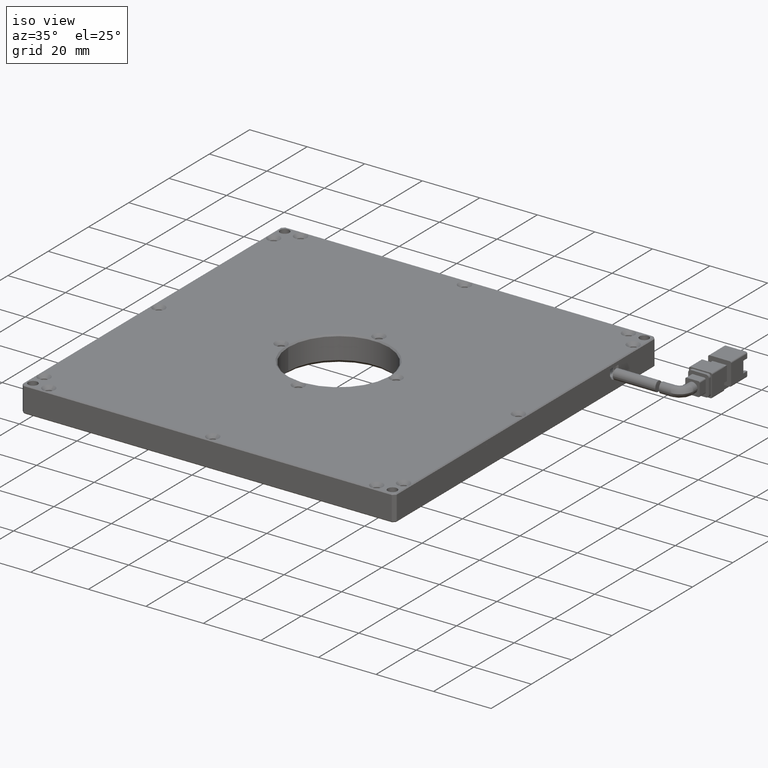
[diagram: clean part render]
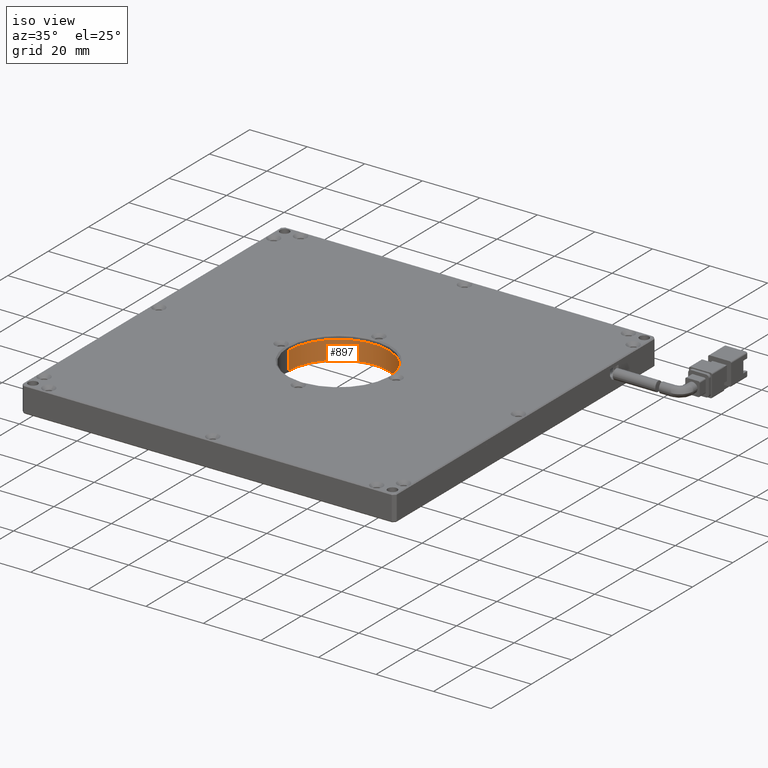
[diagram: same view with one face highlighted and labeled with its STEP entity id]
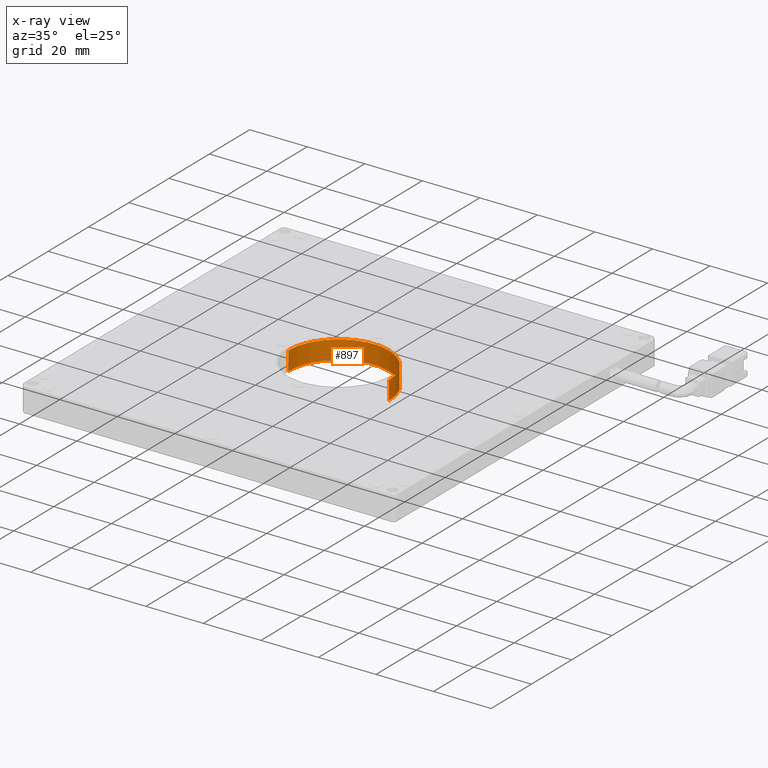
[diagram: x-ray of the same camera — body ghosted, the highlighted face saturated]
A machine part, iso view. The second image highlights one B-rep face of the part: STEP entity #897.
The next image is the same camera in x-ray: the body ghosted, the highlighted face saturated — about 0% of this face is hidden behind the body in this view.
In plain terms, the highlighted cylindrical surface (partial cylindrical patch) has radius 17.5 mm, axis along (0, 0, -1).
Its self-contained STEP definition (entity closure, byte-faithful):
#744 = DIRECTION ( 'NONE',  ( 0.0000000000000000000, 0.0000000000000000000, -1.000000000000000000 ) ) ;
#783 = DIRECTION ( 'NONE',  ( 0.0000000000000000000, 0.0000000000000000000, -1.000000000000000000 ) ) ;
#897 = ADVANCED_FACE ( 'NONE', ( #10947 ), #19276, .F. ) ;
#985 = DIRECTION ( 'NONE',  ( -1.000000000000000000, -1.982541115402064900E-016, 0.0000000000000000000 ) ) ;
#1381 = DIRECTION ( 'NONE',  ( -1.000000000000000000, -1.982541115402064900E-016, 0.0000000000000000000 ) ) ;
#2080 = VERTEX_POINT ( 'NONE', #3123 ) ;
#2462 = AXIS2_PLACEMENT_3D ( 'NONE', #13738, #11909, #1381 ) ;
#3123 = CARTESIAN_POINT ( 'NONE',  ( 8.629074074074115000, 24.05944444444444100, 4.499999999999997300 ) ) ;
#3510 = VECTOR ( 'NONE', #744, 1000.000000000000000 ) ;
#3770 = CARTESIAN_POINT ( 'NONE',  ( 8.629074074074115000, 24.05944444444444100, -61.53117956449462900 ) ) ;
#3971 = EDGE_CURVE ( 'NONE', #18579, #18957, #8566, .T. ) ;
#5731 = LINE ( 'NONE', #3770, #3510 ) ;
#6958 = VERTEX_POINT ( 'NONE', #8220 ) ;
#7302 = CIRCLE ( 'NONE', #13428, 17.50000000000000400 ) ;
#7769 = DIRECTION ( 'NONE',  ( 0.0000000000000000000, 0.0000000000000000000, -1.000000000000000000 ) ) ;
#8220 = CARTESIAN_POINT ( 'NONE',  ( 8.629074074074115000, 24.05944444444444100, -1.999999999999994900 ) ) ;
#8566 = LINE ( 'NONE', #20228, #14686 ) ;
#9265 = CARTESIAN_POINT ( 'NONE',  ( 26.12907407407412200, 24.05944444444444500, -1.999999999999994900 ) ) ;
#10319 = ORIENTED_EDGE ( 'NONE', *, *, #12027, .T. ) ;
#10815 = DIRECTION ( 'NONE',  ( 0.0000000000000000000, 0.0000000000000000000, -1.000000000000000000 ) ) ;
#10947 = FACE_OUTER_BOUND ( 'NONE', #15022, .T. ) ;
#11909 = DIRECTION ( 'NONE',  ( 0.0000000000000000000, 0.0000000000000000000, -1.000000000000000000 ) ) ;
#12027 = EDGE_CURVE ( 'NONE', #6958, #18957, #19671, .T. ) ;
#12399 = DIRECTION ( 'NONE',  ( -1.000000000000000000, -1.982541115402064900E-016, 0.0000000000000000000 ) ) ;
#12528 = AXIS2_PLACEMENT_3D ( 'NONE', #9265, #10815, #12399 ) ;
#13428 = AXIS2_PLACEMENT_3D ( 'NONE', #18630, #783, #985 ) ;
#13592 = ORIENTED_EDGE ( 'NONE', *, *, #3971, .F. ) ;
#13738 = CARTESIAN_POINT ( 'NONE',  ( 26.12907407407412200, 24.05944444444444500, -61.53117956449462900 ) ) ;
#14221 = CARTESIAN_POINT ( 'NONE',  ( 43.62907407407412600, 24.05944444444444800, -1.999999999999994900 ) ) ;
#14439 = CARTESIAN_POINT ( 'NONE',  ( 43.62907407407412600, 24.05944444444444800, 4.499999999999997300 ) ) ;
#14686 = VECTOR ( 'NONE', #7769, 1000.000000000000000 ) ;
#14702 = ORIENTED_EDGE ( 'NONE', *, *, #15546, .T. ) ;
#15022 = EDGE_LOOP ( 'NONE', ( #13592, #18292, #14702, #10319 ) ) ;
#15546 = EDGE_CURVE ( 'NONE', #2080, #6958, #5731, .T. ) ;
#18292 = ORIENTED_EDGE ( 'NONE', *, *, #20114, .F. ) ;
#18579 = VERTEX_POINT ( 'NONE', #14439 ) ;
#18630 = CARTESIAN_POINT ( 'NONE',  ( 26.12907407407412200, 24.05944444444444500, 4.499999999999997300 ) ) ;
#18957 = VERTEX_POINT ( 'NONE', #14221 ) ;
#19276 = CYLINDRICAL_SURFACE ( 'NONE', #2462, 17.50000000000000400 ) ;
#19671 = CIRCLE ( 'NONE', #12528, 17.50000000000000400 ) ;
#20114 = EDGE_CURVE ( 'NONE', #2080, #18579, #7302, .T. ) ;
#20228 = CARTESIAN_POINT ( 'NONE',  ( 43.62907407407412600, 24.05944444444444800, -61.53117956449462900 ) ) ;